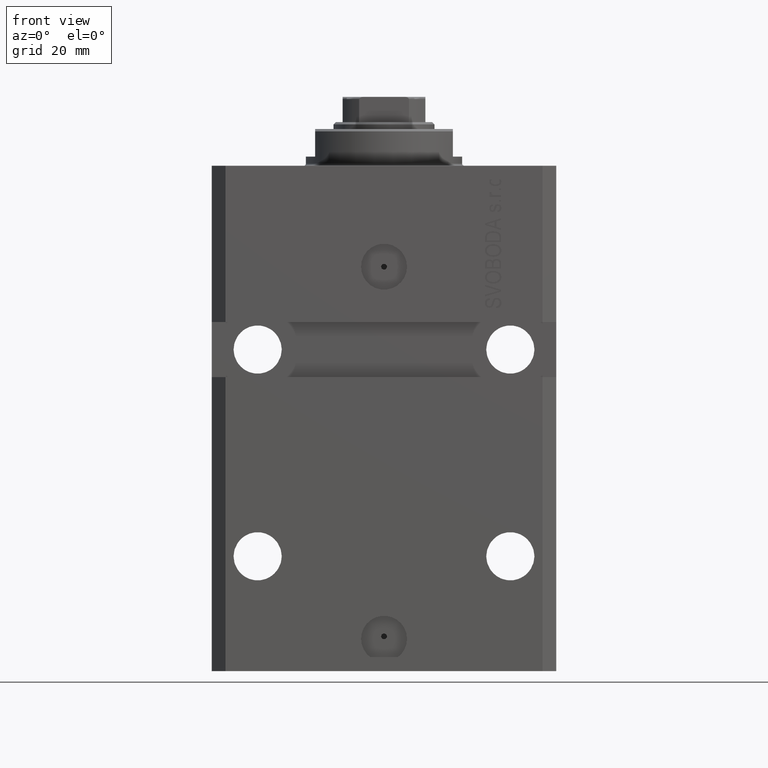
[diagram: clean part render]
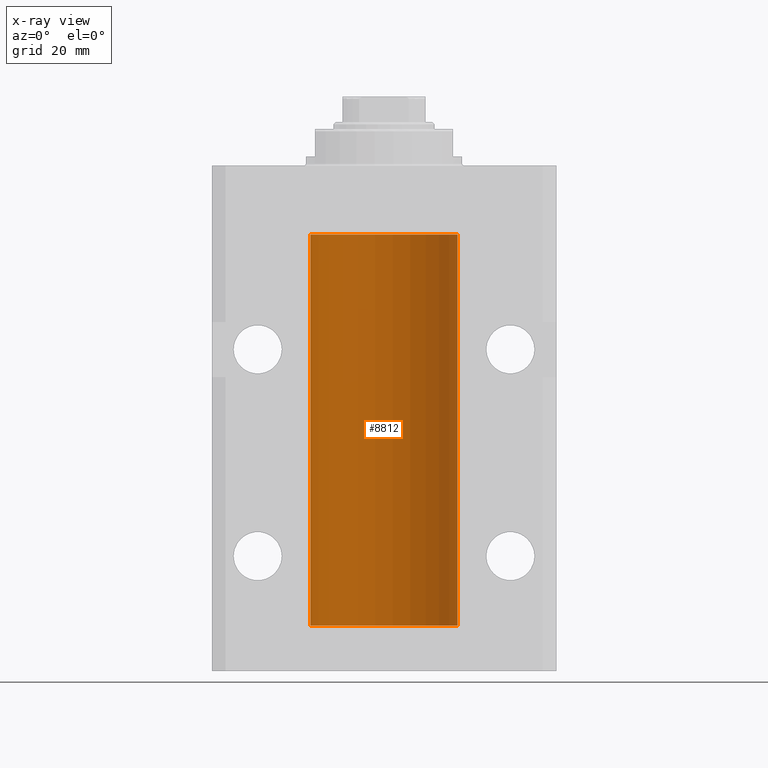
[diagram: x-ray — body ghosted, one internal face saturated and labeled with its STEP entity id]
A machine part, front view, then the same camera in x-ray: the body is ghosted and one INTERNAL B-rep face — a face not visible from any outside direction — is saturated and labeled: STEP entity #8812.
In plain terms, the highlighted cylindrical surface (partial cylindrical patch) has radius 16 mm, axis along (0, 0, 1).
Its self-contained STEP definition (entity closure, byte-faithful):
#49 = EDGE_CURVE ( 'NONE', #12992, #27539, #1343, .T. ) ;
#300 = LINE ( 'NONE', #3192, #36443 ) ;
#1022 = EDGE_CURVE ( 'NONE', #1212, #27539, #35286, .T. ) ;
#1098 = CARTESIAN_POINT ( 'NONE',  ( -16.00000000000000000, 1.959434878635765131E-15, -100.0999999999999943 ) ) ;
#1212 = VERTEX_POINT ( 'NONE', #36935 ) ;
#1249 = CARTESIAN_POINT ( 'NONE',  ( -16.00000000000000711, 0.08259886010188650929, -97.37500000000000000 ) ) ;
#1343 = LINE ( 'NONE', #1098, #12754 ) ;
#3192 = CARTESIAN_POINT ( 'NONE',  ( 16.00000000000000000, 0.000000000000000000, -100.0999999999999943 ) ) ;
#3677 = CARTESIAN_POINT ( 'NONE',  ( 0.000000000000000000, 0.000000000000000000, -100.0999999999999943 ) ) ;
#3838 = AXIS2_PLACEMENT_3D ( 'NONE', #18367, #10466, #35601 ) ;
#4362 = ORIENTED_EDGE ( 'NONE', *, *, #41115, .F. ) ;
#4463 = CARTESIAN_POINT ( 'NONE',  ( -15.99228023727724413, 0.5003781296993413674, -22.38347829554236057 ) ) ;
#7190 = EDGE_CURVE ( 'NONE', #19456, #23055, #35082, .T. ) ;
#7237 = DIRECTION ( 'NONE',  ( -0.000000000000000000, -0.000000000000000000, 1.000000000000000000 ) ) ;
#7526 = VERTEX_POINT ( 'NONE', #17760 ) ;
#8046 = CARTESIAN_POINT ( 'NONE',  ( -15.98778717651346071, 0.6250289588122140971, -22.08131585687052478 ) ) ;
#8812 = ADVANCED_FACE ( 'NONE', ( #18122 ), #43505, .F. ) ;
#9158 = CARTESIAN_POINT ( 'NONE',  ( -15.99070426498503572, 0.5462220647145610286, -98.31460064614144301 ) ) ;
#10466 = DIRECTION ( 'NONE',  ( -0.000000000000000000, -0.000000000000000000, 1.000000000000000000 ) ) ;
#11950 = ORIENTED_EDGE ( 'NONE', *, *, #37679, .T. ) ;
#12119 = CARTESIAN_POINT ( 'NONE',  ( -16.00000000000000000, 1.643679961284177128E-16, -21.37499999999999645 ) ) ;
#12754 = VECTOR ( 'NONE', #30294, 1000.000000000000000 ) ;
#12992 = VERTEX_POINT ( 'NONE', #24632 ) ;
#13161 = CARTESIAN_POINT ( 'NONE',  ( -16.00000000000013145, 3.685127038166941002E-13, -22.62500000000341771 ) ) ;
#16092 = CARTESIAN_POINT ( 'NONE',  ( -15.99707730059171240, 0.3150375992092294686, -97.45402333202572720 ) ) ;
#16189 = CARTESIAN_POINT ( 'NONE',  ( -15.99070426498503217, 0.5462220647145618058, -22.31460064614143590 ) ) ;
#16657 = DIRECTION ( 'NONE',  ( -0.000000000000000000, -0.000000000000000000, 1.000000000000000000 ) ) ;
#17760 = CARTESIAN_POINT ( 'NONE',  ( 16.00000000000000000, 0.000000000000000000, -100.0999999999999943 ) ) ;
#18122 = FACE_OUTER_BOUND ( 'NONE', #27622, .T. ) ;
#18282 = DIRECTION ( 'NONE',  ( 0.000000000000000000, 0.000000000000000000, 1.000000000000000000 ) ) ;
#18367 = CARTESIAN_POINT ( 'NONE',  ( 0.000000000000000000, 0.000000000000000000, -100.0999999999999943 ) ) ;
#18891 = CIRCLE ( 'NONE', #45667, 16.00000000000000000 ) ;
#19456 = VERTEX_POINT ( 'NONE', #32748 ) ;
#19928 = CARTESIAN_POINT ( 'NONE',  ( -15.99999999999998934, 0.1631714642025804407, -98.62499999999987210 ) ) ;
#21526 = CARTESIAN_POINT ( 'NONE',  ( 16.00000000000000000, 0.000000000000000000, -15.00000000000000000 ) ) ;
#22600 = DIRECTION ( 'NONE',  ( 1.000000000000000000, 0.000000000000000000, 0.000000000000000000 ) ) ;
#22652 = CARTESIAN_POINT ( 'NONE',  ( -16.00000000000000000, 0.1631714642025800244, -22.62499999999985789 ) ) ;
#23038 = CARTESIAN_POINT ( 'NONE',  ( -16.00000000000000000, -1.303459030566954747E-14, -97.37500000000000000 ) ) ;
#23055 = VERTEX_POINT ( 'NONE', #43614 ) ;
#23290 = ORIENTED_EDGE ( 'NONE', *, *, #1022, .T. ) ;
#23517 = CARTESIAN_POINT ( 'NONE',  ( -15.98844267028590949, 0.6088369347963275002, -98.16324735024325321 ) ) ;
#23761 = ORIENTED_EDGE ( 'NONE', *, *, #42048, .F. ) ;
#24539 = CARTESIAN_POINT ( 'NONE',  ( -16.00000000000000000, 1.959434878635765131E-15, -100.0999999999999943 ) ) ;
#24632 = CARTESIAN_POINT ( 'NONE',  ( -16.00000000000000000, -1.303459030566954747E-14, -97.37500000000000000 ) ) ;
#24683 = ORIENTED_EDGE ( 'NONE', *, *, #31347, .T. ) ;
#26240 = CARTESIAN_POINT ( 'NONE',  ( -15.99070653155267685, 0.5573233280232986475, -21.67348148680506625 ) ) ;
#26717 = CARTESIAN_POINT ( 'NONE',  ( -15.98779057735153941, 0.6249419637998100407, -21.83670145863507273 ) ) ;
#27072 = EDGE_CURVE ( 'NONE', #12992, #23055, #35717, .T. ) ;
#27093 = CARTESIAN_POINT ( 'NONE',  ( -15.98778717651346604, 0.6250289588122097673, -98.08131585687051768 ) ) ;
#27539 = VERTEX_POINT ( 'NONE', #13161 ) ;
#27622 = EDGE_LOOP ( 'NONE', ( #40365, #23761, #11950, #24683, #4362, #23290, #38312, #38818 ) ) ;
#29827 = CARTESIAN_POINT ( 'NONE',  ( -15.99707730059171240, 0.3150375992092407373, -21.45402333202571654 ) ) ;
#30014 = CARTESIAN_POINT ( 'NONE',  ( 0.000000000000000000, 0.000000000000000000, -15.00000000000000000 ) ) ;
#30294 = DIRECTION ( 'NONE',  ( -0.000000000000000000, -0.000000000000000000, 1.000000000000000000 ) ) ;
#30445 = CARTESIAN_POINT ( 'NONE',  ( -16.00000000000013145, 3.685127046438747128E-13, -98.62500000000343903 ) ) ;
#30551 = CARTESIAN_POINT ( 'NONE',  ( -15.99934216141748244, 0.1636497843296417787, -21.39126528029306229 ) ) ;
#30923 = CARTESIAN_POINT ( 'NONE',  ( -15.99711699979841661, 0.3253759916140614439, -98.55856151623174810 ) ) ;
#31163 = CARTESIAN_POINT ( 'NONE',  ( -15.99934216141748244, 0.1636497843296308152, -97.39126528029306940 ) ) ;
#31347 = EDGE_CURVE ( 'NONE', #35363, #38858, #43388, .T. ) ;
#31398 = CARTESIAN_POINT ( 'NONE',  ( -15.99070653155267685, 0.5573233280232928744, -97.67348148680505915 ) ) ;
#32748 = CARTESIAN_POINT ( 'NONE',  ( -16.00000000000000000, 1.959434878635765131E-15, -100.0999999999999943 ) ) ;
#33623 = DIRECTION ( 'NONE',  ( -0.000000000000000000, -0.000000000000000000, 1.000000000000000000 ) ) ;
#33862 = CARTESIAN_POINT ( 'NONE',  ( -16.00000000000000000, 1.959434878635765131E-15, -100.0999999999999943 ) ) ;
#35082 = LINE ( 'NONE', #24539, #42687 ) ;
#35286 = B_SPLINE_CURVE_WITH_KNOTS ( 'NONE', 3,
 ( #12119, #45159, #30551, #29827, #40843, #26240, #26717, #8046, #37714, #16189, #4463, #41569, #22652, #37241 ),
 .UNSPECIFIED., .F., .F.,
 ( 4, 2, 2, 2, 2, 2, 4 ),
 ( 1.597328219370744179E-19, 0.0002442776652680942405, 0.0004885553305361882643, 0.0009771106610723839011, 0.001221388326340481665, 0.001465665991608579430, 0.001954221322144767369 ),
 .UNSPECIFIED. ) ;
#35363 = VERTEX_POINT ( 'NONE', #21526 ) ;
#35601 = DIRECTION ( 'NONE',  ( 1.000000000000000000, 0.000000000000000000, 0.000000000000000000 ) ) ;
#35717 = B_SPLINE_CURVE_WITH_KNOTS ( 'NONE', 3,
 ( #23038, #1249, #31163, #16092, #41710, #31398, #45302, #27093, #23517, #9158, #38103, #30923, #19928, #30445 ),
 .UNSPECIFIED., .F., .F.,
 ( 4, 2, 2, 2, 2, 2, 4 ),
 ( 1.003919637555167698E-18, 0.0002442776652680894158, 0.0004885553305361776391, 0.0009771106610723541940, 0.001221388326340463017, 0.001465665991608572274, 0.001954221322144760863 ),
 .UNSPECIFIED. ) ;
#36443 = VECTOR ( 'NONE', #7237, 1000.000000000000000 ) ;
#36935 = CARTESIAN_POINT ( 'NONE',  ( -16.00000000000000000, 1.643679961284177128E-16, -21.37499999999999645 ) ) ;
#37241 = CARTESIAN_POINT ( 'NONE',  ( -16.00000000000013145, 3.685127038166941002E-13, -22.62500000000341771 ) ) ;
#37679 = EDGE_CURVE ( 'NONE', #7526, #35363, #300, .T. ) ;
#37714 = CARTESIAN_POINT ( 'NONE',  ( -15.98844267028591482, 0.6088369347963316081, -22.16324735024328518 ) ) ;
#38103 = CARTESIAN_POINT ( 'NONE',  ( -15.99228023727724057, 0.5003781296993360383, -98.38347829554236057 ) ) ;
#38312 = ORIENTED_EDGE ( 'NONE', *, *, #49, .F. ) ;
#38749 = VECTOR ( 'NONE', #33623, 1000.000000000000000 ) ;
#38818 = ORIENTED_EDGE ( 'NONE', *, *, #27072, .T. ) ;
#38858 = VERTEX_POINT ( 'NONE', #45137 ) ;
#40365 = ORIENTED_EDGE ( 'NONE', *, *, #7190, .F. ) ;
#40794 = DIRECTION ( 'NONE',  ( 0.000000000000000000, 0.000000000000000000, 1.000000000000000000 ) ) ;
#40843 = CARTESIAN_POINT ( 'NONE',  ( -15.99548640841683067, 0.3843705577988847377, -21.50046628527008608 ) ) ;
#41050 = LINE ( 'NONE', #33862, #38749 ) ;
#41115 = EDGE_CURVE ( 'NONE', #1212, #38858, #41050, .T. ) ;
#41569 = CARTESIAN_POINT ( 'NONE',  ( -15.99711699979842017, 0.3253759916140657737, -22.55856151623175521 ) ) ;
#41710 = CARTESIAN_POINT ( 'NONE',  ( -15.99548640841682712, 0.3843705577988784650, -97.50046628527007897 ) ) ;
#42048 = EDGE_CURVE ( 'NONE', #7526, #19456, #18891, .T. ) ;
#42687 = VECTOR ( 'NONE', #16657, 1000.000000000000000 ) ;
#43388 = CIRCLE ( 'NONE', #44170, 16.00000000000000000 ) ;
#43505 = CYLINDRICAL_SURFACE ( 'NONE', #3838, 16.00000000000000000 ) ;
#43614 = CARTESIAN_POINT ( 'NONE',  ( -16.00000000000013145, 3.685127046438747128E-13, -98.62500000000343903 ) ) ;
#43651 = DIRECTION ( 'NONE',  ( 1.000000000000000000, 0.000000000000000000, 0.000000000000000000 ) ) ;
#44170 = AXIS2_PLACEMENT_3D ( 'NONE', #30014, #40794, #22600 ) ;
#45137 = CARTESIAN_POINT ( 'NONE',  ( -16.00000000000000000, 1.959434878635765131E-15, -15.00000000000000000 ) ) ;
#45159 = CARTESIAN_POINT ( 'NONE',  ( -16.00000000000000711, 0.08259886010189904093, -21.37500000000000000 ) ) ;
#45302 = CARTESIAN_POINT ( 'NONE',  ( -15.98779057735153941, 0.6249419637998017141, -97.83670145863504786 ) ) ;
#45667 = AXIS2_PLACEMENT_3D ( 'NONE', #3677, #18282, #43651 ) ;